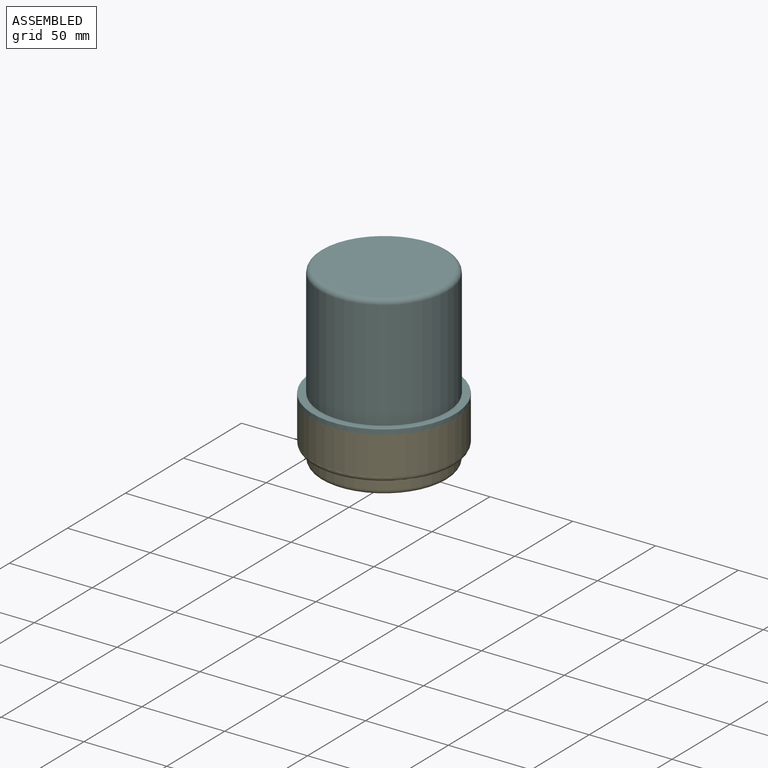
[diagram: assembled view]
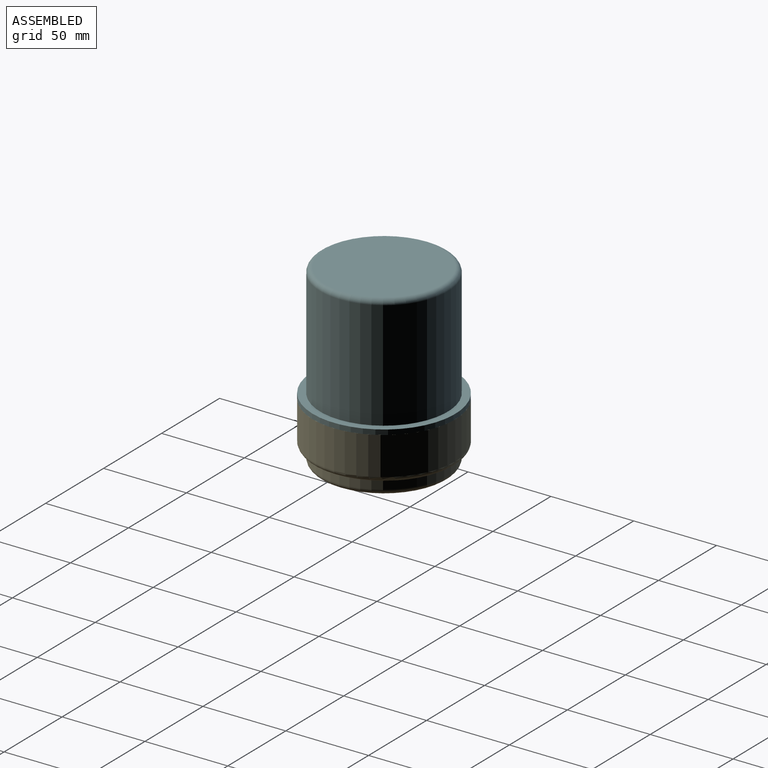
[diagram: assembled view, second angle]
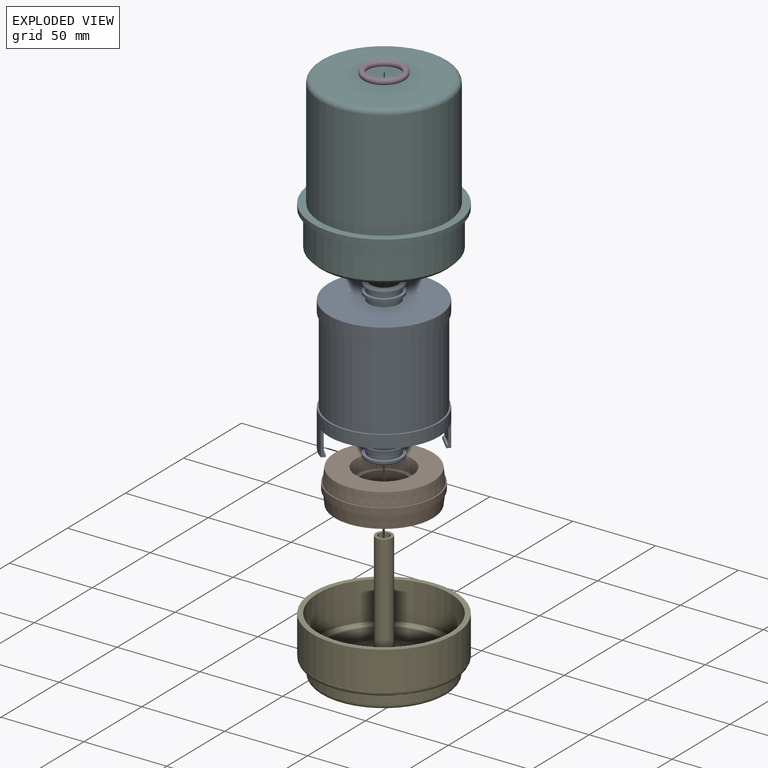
[diagram: exploded view]
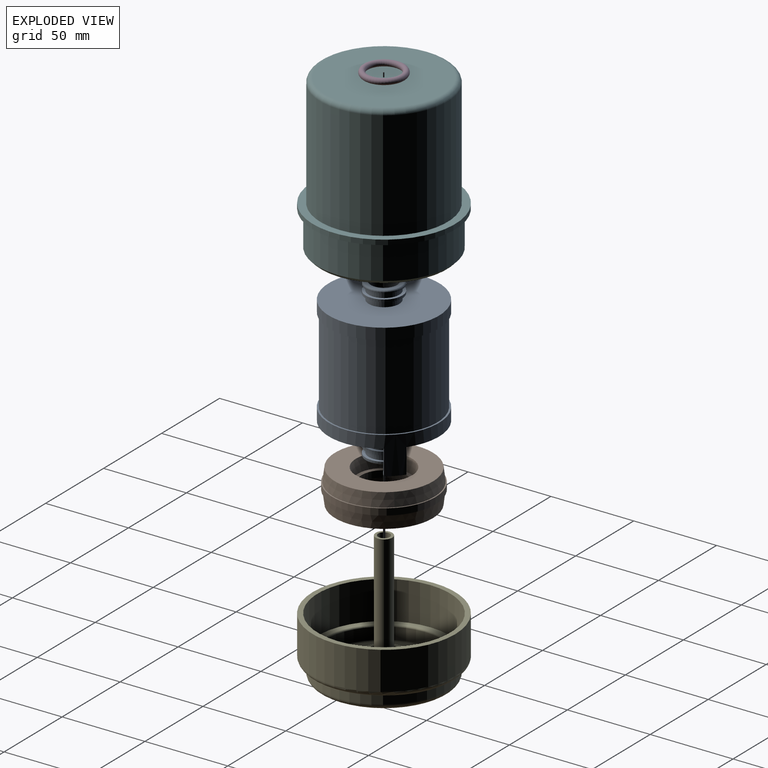
[diagram: exploded view, second angle]
ASSEMBLY  parts=6 mates=5
PART A: 46 faces, bbox 66.5x66.5x95.5 mm
  f0: plane 22x22mm, normal (0,0,1), area 111.3mm2, adj f1,f33
  f1: cylinder r=9.25mm len=18.5mm, axis (0,0,-1), area 203.4mm2, adj f0,f2
  f2: plane 22x22mm, normal (0,0,-1), area 111.3mm2, adj f1,f3
  f3: cylinder r=11mm len=22mm, axis (0,0,-1), area 103.7mm2, adj f2,f4
  f4: plane 22x22mm, normal (0,0,1), area 111.3mm2, adj f3,f5
  f5: cylinder r=9.25mm len=18.5mm, axis (0,0,-1), area 203.4mm2, adj f4,f6
  f6: plane 66.5x66.5mm, normal (0,0,-1), area 3204.4mm2, adj f5,f7
  f7: cylinder r=33.25mm len=66.5mm, axis (0,0,-1), area 1462.4mm2, adj f6,f8
  f8: plane 66.5x66.5mm, normal (0,0,1), area 205.8mm2, adj f7,f9
  f9: cylinder r=32.25mm len=64.5mm, axis (0,0,-1), area 10435.6mm2, adj f8,f10
  f10: plane 66.5x66.5mm, normal (0,0,-1), area 205.8mm2, adj f9,f11
  f11: cylinder r=33.25mm len=66.5mm, axis (0,0,-1), area 1913.6mm2, adj f10,f12,f34,f35,f37,f38,f42,f45
  f12: plane 66.5x65.5mm, normal (0,0,1), area 3169.7mm2, adj f11,f13,f34,f35,f36,f37,f38,f39
  f13: cylinder r=9.25mm len=18.5mm, axis (0,0,-1), area 261.5mm2, adj f12,f14
  f14: plane 33x33mm, normal (0,0,-1), area 586.5mm2, adj f13,f15
  f15: cylinder r=16.5mm len=33mm, axis (0,0,-1), area 207.3mm2, adj f14,f16
  f16: plane 33x33mm, normal (0,0,1), area 586.5mm2, adj f15,f17
  f17: cylinder r=9.25mm len=18.5mm, axis (0,0,-1), area 319.7mm2, adj f16,f18
  f18: plane 22x22mm, normal (0,0,-1), area 111.3mm2, adj f17,f19
  f19: cylinder r=11mm len=22mm, axis (0,0,-1), area 138.2mm2, adj f18,f20
  f20: plane 22x22mm, normal (0,0,1), area 111.3mm2, adj f19,f21
  f21: cylinder r=9.25mm len=18.5mm, axis (0,0,-1), area 203.4mm2, adj f20,f22
  f22: plane 22x22mm, normal (0,0,-1), area 111.3mm2, adj f21,f23
  f23: cylinder r=11mm len=22mm, axis (0,0,-1), area 69.1mm2, adj f22,f24
  f24: torus R=10mm, axis (0,0,-1), area 105mm2, adj f23,f25
  f25: plane 20x20mm, normal (0,0,1), area 113.1mm2, adj f24,f26
  f26: cylinder r=8mm len=27mm, axis (0,0,-1), area 1357.2mm2, adj f25,f27
  f27: plane 34.5x34.5mm, normal (0,0,-1), area 733.8mm2, adj f26,f28
  f28: cylinder r=17.25mm len=51.5mm, axis (0,0,-1), area 5581.8mm2, adj f27,f29
  f29: plane 34.5x34.5mm, normal (0,0,1), area 733.8mm2, adj f28,f30
  f30: cylinder r=8mm len=17mm, axis (0,0,-1), area 854.5mm2, adj f29,f31
  f31: plane 20x20mm, normal (0,0,-1), area 113.1mm2, adj f30,f32
  f32: torus R=10mm, axis (0,0,-1), area 105mm2, adj f31,f33
  f33: cylinder r=11mm len=22mm, axis (0,0,-1), area 34.6mm2, adj f0,f32
  f34: plane 15x2.5mm, normal (0,-1,0), area 24.3mm2, adj f11,f12,f36,f40,f41,f42
  f35: plane 15x2.5mm, normal (0,1,0), area 24.3mm2, adj f11,f12,f36,f40,f41,f42
  f36: cylinder r=31.75mm len=13.5mm, axis (0,0,-1), area 156.1mm2, adj f12,f34,f35,f40
  f37: plane 15x2.5mm, normal (0,1,0), area 24.3mm2, adj f11,f12,f39,f43,f44,f45
  f38: plane 15x2.5mm, normal (0,-1,0), area 24.3mm2, adj f11,f12,f39,f43,f44,f45
  f39: cylinder r=31.75mm len=13.5mm, axis (0,0,-1), area 156.1mm2, adj f12,f37,f38,f43
  f40: plane 11.5x1.5mm, normal (0,0,-1), area 15.2mm2, adj f34,f35,f36,f41
  f41: plane 11.5x1.5mm, normal (-1,0,0), area 17.3mm2, adj f34,f35,f40,f42
  f42: plane 11.5x3mm, normal (0,0,1), area 32.6mm2, adj f11,f34,f35,f41
  f43: plane 11.5x1.5mm, normal (0,0,-1), area 15.2mm2, adj f37,f38,f39,f44
  f44: plane 11.5x1.5mm, normal (1,0,0), area 17.3mm2, adj f37,f38,f43,f45
  f45: plane 11.5x3mm, normal (0,0,1), area 32.6mm2, adj f11,f37,f38,f44
PART B: 12 faces, bbox 62.3x62.3x20 mm
  f0: plane 32x32mm, normal (0,0,-1), area 231.7mm2, adj f1,f11
  f1: cylinder r=13.5mm len=27mm, axis (0,0,-1), area 339.3mm2, adj f0,f2
  f2: plane 32x32mm, normal (0,0,1), area 231.7mm2, adj f1,f3
  f3: cone r=17mm half-angle=7.1deg, axis (0,0,1), area 835.8mm2, adj f2,f4
  f4: plane 59x59mm, normal (0,0,1), area 1826.1mm2, adj f3,f5
  f5: cone r=29.5mm half-angle=7.1deg, axis (0,0,-1), area 1519.7mm2, adj f4,f6
  f6: plane 62.28x62.28mm, normal (0,0,1), area 123.7mm2, adj f5,f7
  f7: cylinder r=31.14mm len=62.28mm, axis (0,0,-1), area 782.6mm2, adj f6,f8
  f8: plane 62.28x62.28mm, normal (0,0,-1), area 123.7mm2, adj f7,f9
  f9: cone r=29.5mm half-angle=7.1deg, axis (0,0,1), area 1519.7mm2, adj f8,f10
  f10: plane 59x59mm, normal (0,0,-1), area 1826.1mm2, adj f9,f11
  f11: cone r=17mm half-angle=7.1deg, axis (0,0,-1), area 835.8mm2, adj f0,f10
PART C: 1 faces, bbox 27.6x27.6x3.5 mm
  f0: torus R=11mm, axis (0,0,-1), area 760mm2
PART D: 1 faces, bbox 27.6x27.6x3.5 mm
  f0: torus R=11mm, axis (0,0,-1), area 760mm2
PART E: 28 faces, bbox 93.1x93.1x89.4 mm
  f0: cylinder r=3.5mm len=74.5mm, axis (0,0,-1), area 1638.3mm2, adj f1,f27
  f1: plane 7x7mm, normal (0,0,1), area 25.9mm2, adj f0,f2
  f2: cylinder r=2mm len=14.87mm, axis (0,0,-1), area 186.8mm2, adj f1,f3
  f3: plane 8x8mm, normal (0,0,-1), area 37.7mm2, adj f2,f4
  f4: cylinder r=4mm len=11.87mm, axis (0,0,-1), area 298.3mm2, adj f3,f5
  f5: plane 71x71mm, normal (0,0,-1), area 3908.9mm2, adj f4,f6
  f6: torus R=35.5mm, axis (0,0,-1), area 1107.7mm2, adj f5,f7
  f7: cylinder r=38.5mm len=77mm, axis (0,0,-1), area 1209.5mm2, adj f6,f8
  f8: torus R=39.5mm, axis (0,0,-1), area 383.6mm2, adj f7,f9
  f9: plane 80x80mm, normal (0,0,-1), area 124.9mm2, adj f8,f10
  f10: torus R=40mm, axis (0,0,-1), area 1240.9mm2, adj f9,f11
  f11: cylinder r=43mm len=86mm, axis (0,0,-1), area 6214.1mm2, adj f10,f12
  f12: plane 86x86mm, normal (0,0,1), area 782.3mm2, adj f11,f13
  f13: cylinder r=40mm len=80mm, axis (0,0,-1), area 5780.5mm2, adj f12,f14
  f14: plane 80x80mm, normal (0,0,1), area 841.2mm2, adj f13,f15
  f15: torus R=36.5mm, axis (0,0,-1), area 354mm2, adj f14,f16
  f16: cylinder r=35.5mm len=71mm, axis (0,0,-1), area 1561.4mm2, adj f15,f17
  f17: torus R=34.5mm, axis (0,0,-1), area 346.8mm2, adj f16,f18
  f18: plane 69x69mm, normal (0,0,1), area 3032.4mm2, adj f17,f19
  f19: torus R=15mm, axis (0,0,-1), area 141.8mm2, adj f18,f20
  f20: cylinder r=14mm len=28mm, axis (0,0,-1), area 703.7mm2, adj f19,f21
  f21: plane 28x28mm, normal (0,0,1), area 163.4mm2, adj f20,f22
  f22: cylinder r=12mm len=24mm, axis (0,0,-1), area 603.2mm2, adj f21,f23
  f23: torus R=11mm, axis (0,0,-1), area 114.8mm2, adj f22,f24
  f24: plane 22x22mm, normal (0,0,1), area 267mm2, adj f23,f25
  f25: torus R=6mm, axis (0,0,-1), area 52.9mm2, adj f24,f26
  f26: cylinder r=5mm len=73.5mm, axis (0,0,-1), area 2309.1mm2, adj f25,f27
  f27: plane 10x10mm, normal (0,0,1), area 40.1mm2, adj f0,f26
PART F: 18 faces, bbox 86x86x94.7 mm
  f0: cylinder r=35.5mm len=90.7mm, axis (0,0,-1), area 20230.9mm2, adj f1,f17
  f1: plane 76x76mm, normal (0,0,-1), area 577.3mm2, adj f0,f2
  f2: cone r=38mm half-angle=45deg, axis (0,0,1), area 693.1mm2, adj f1,f3
  f3: cylinder r=40mm len=80mm, axis (0,0,-1), area 5277.9mm2, adj f2,f4
  f4: plane 86x86mm, normal (0,0,-1), area 782.3mm2, adj f3,f5
  f5: cylinder r=43mm len=86mm, axis (0,0,-1), area 810.5mm2, adj f4,f6
  f6: plane 86x86mm, normal (0,0,1), area 1152.2mm2, adj f5,f7
  f7: cylinder r=38.5mm len=77mm, axis (0,0,-1), area 15893mm2, adj f6,f8
  f8: torus R=35.5mm, axis (0,0,-1), area 1107.7mm2, adj f7,f9
  f9: plane 71x71mm, normal (0,0,1), area 3959.2mm2, adj f8
  f10: plane 22x22mm, normal (0,0,-1), area 380.1mm2, adj f11
  f11: torus R=11mm, axis (0,0,-1), area 114.8mm2, adj f10,f12
  f12: cylinder r=12mm len=24mm, axis (0,0,-1), area 806.8mm2, adj f11,f13
  f13: plane 28x28mm, normal (0,0,-1), area 163.4mm2, adj f12,f14
  f14: cylinder r=14mm len=28mm, axis (0,0,-1), area 941.2mm2, adj f13,f15
  f15: torus R=15mm, axis (0,0,-1), area 141.8mm2, adj f14,f16
  f16: plane 69x69mm, normal (0,0,-1), area 3032.4mm2, adj f15,f17
  f17: torus R=34.5mm, axis (0,0,-1), area 346.8mm2, adj f0,f16
PLACE A rot(axis=(0.38,-0.92,0),180deg) t=(-53.95,21.57,130.66)mm
PLACE B rot(axis=(-0.38,0.92,0),180deg) t=(-53.95,21.57,130.66)mm
PLACE C rot(axis=(-0.12,-0.99,0),180deg) t=(-53.95,21.57,130.66)mm
PLACE D rot(axis=(-0.12,-0.99,0),180deg) t=(-53.95,21.57,130.66)mm
PLACE E t=(-53.95,21.57,34.66)mm fixed
PLACE F t=(-53.95,21.57,34.66)mm
MATE cylindrical A.f1 <-> F.f0  axis (0,0,1) through (-53.95,21.57,130.66)mm
MATE revolute C.f0 <-> A.f1  axis (0,0,1) through (-53.95,21.57,38.91)mm
MATE revolute D.f0 <-> A.f1  axis (0,0,1) through (-53.95,21.57,127.41)mm
MATE fastened A.f1 <-> B.f1  axis (0,0,-1) through (-53.95,21.57,54.66)mm
MATE fastened E.f0 <-> F.f0  axis (0,0,1) through (-53.95,21.57,66.66)mm
